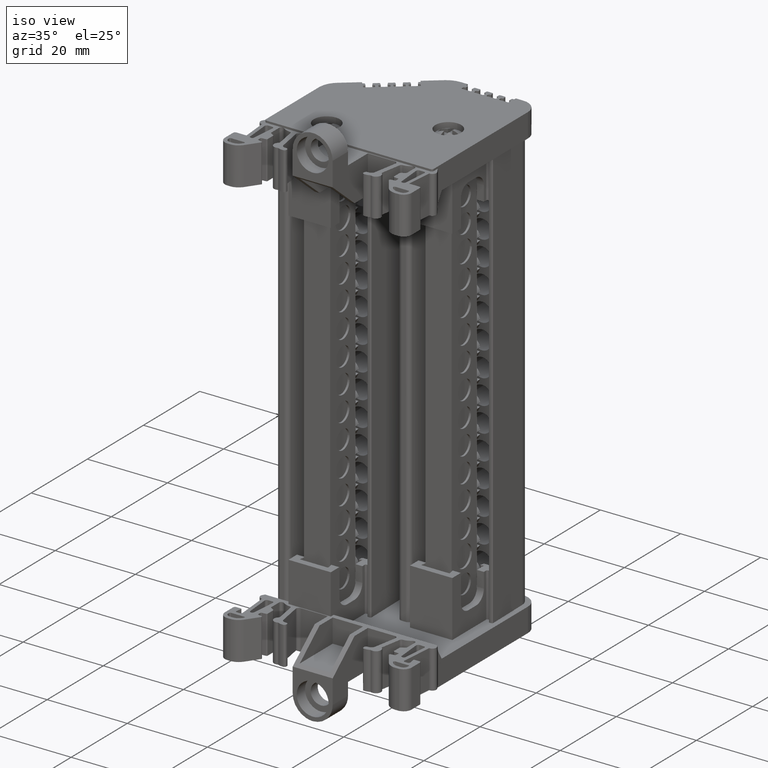
[diagram: clean part render]
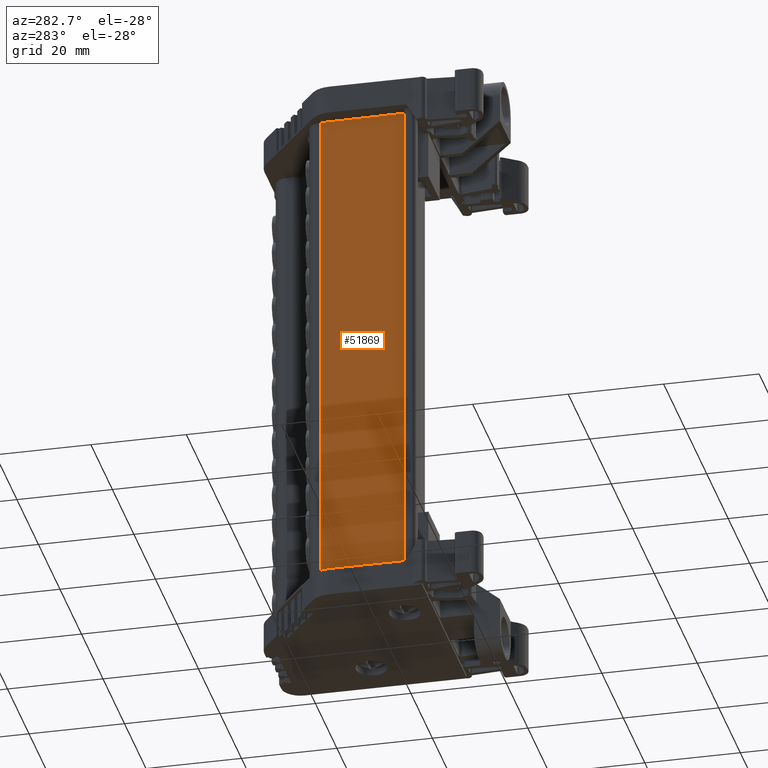
[diagram: tour spotlight — one face highlighted and labeled with its STEP entity id]
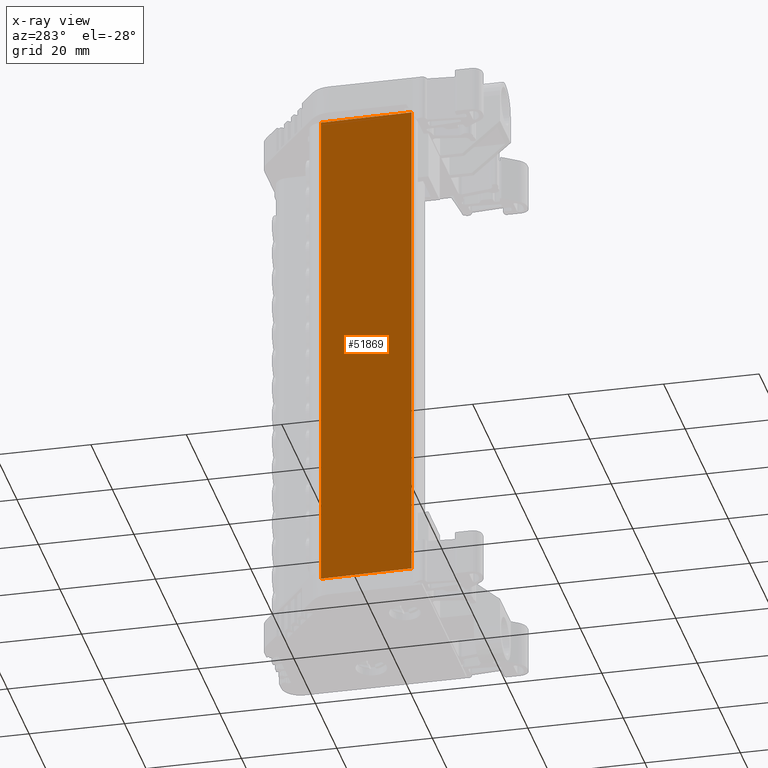
[diagram: x-ray of the same camera — body ghosted, this tour face saturated]
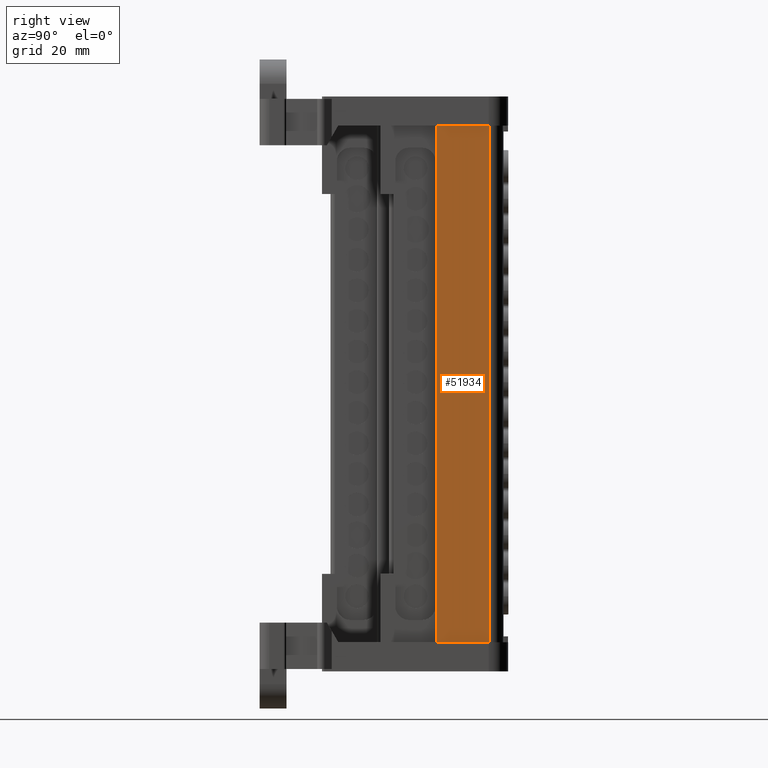
[diagram: tour spotlight — one face highlighted and labeled with its STEP entity id]
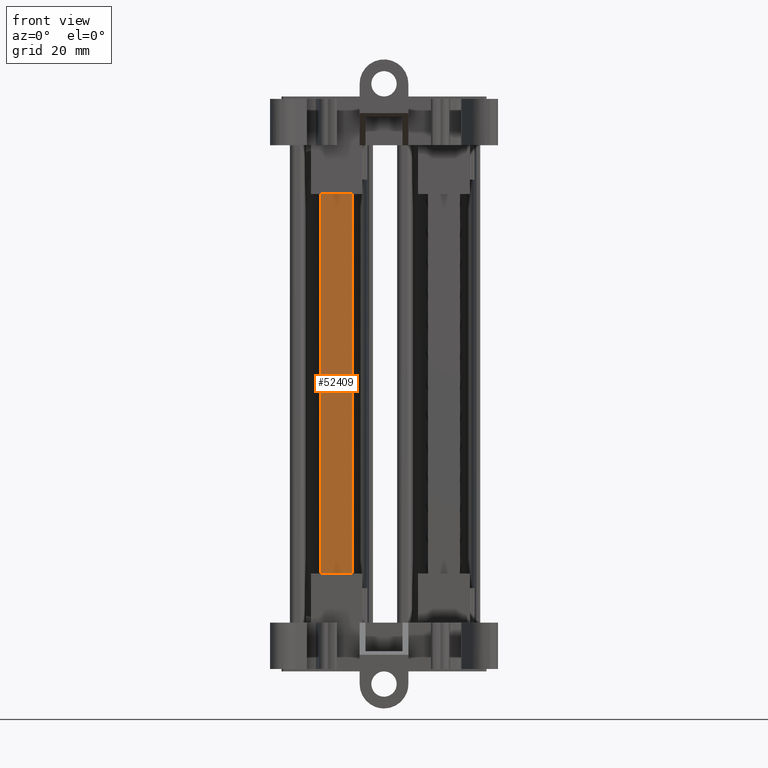
[diagram: tour spotlight — one face highlighted and labeled with its STEP entity id]
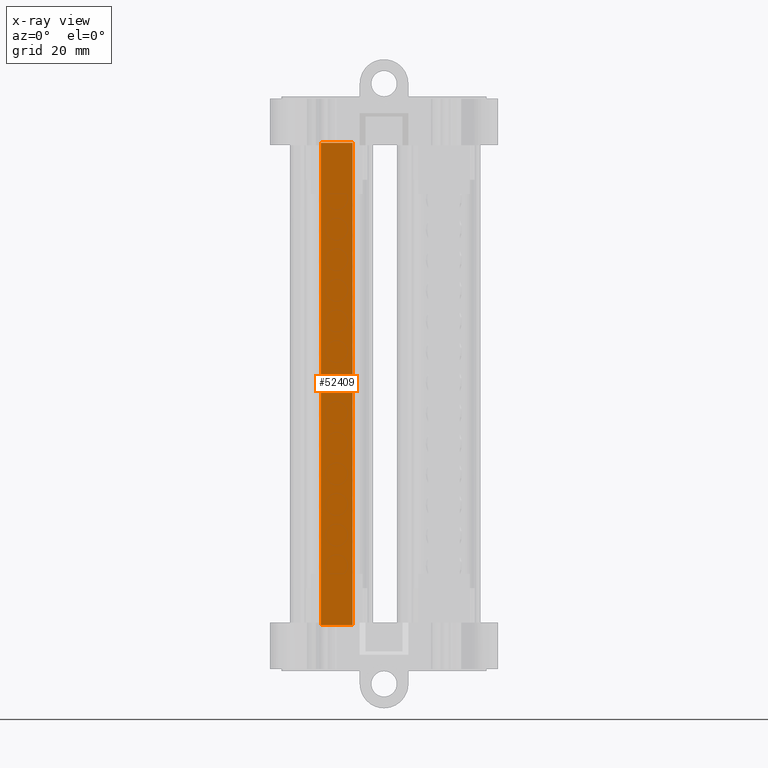
[diagram: x-ray of the same camera — body ghosted, this tour face saturated]
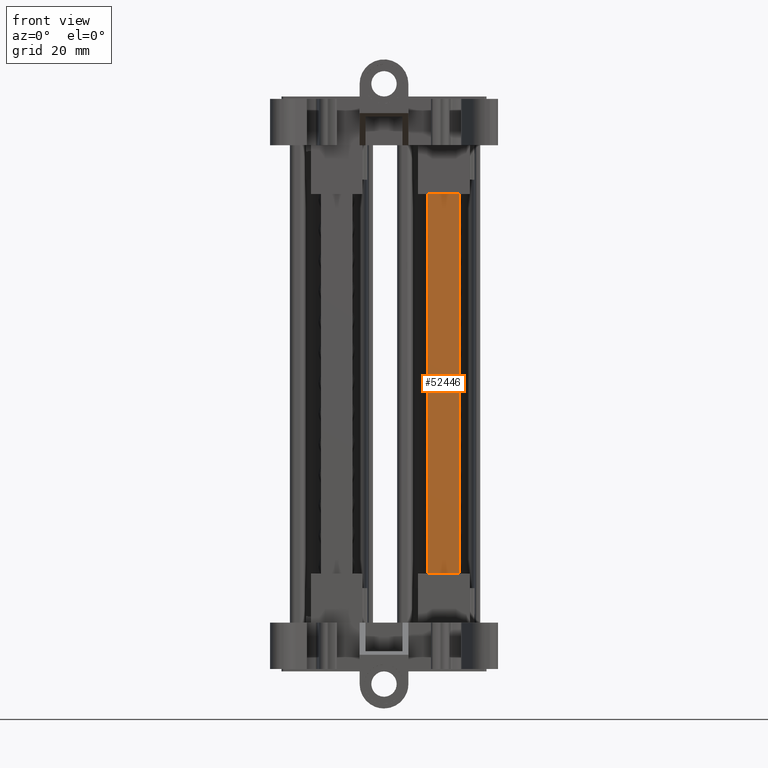
[diagram: tour spotlight — one face highlighted and labeled with its STEP entity id]
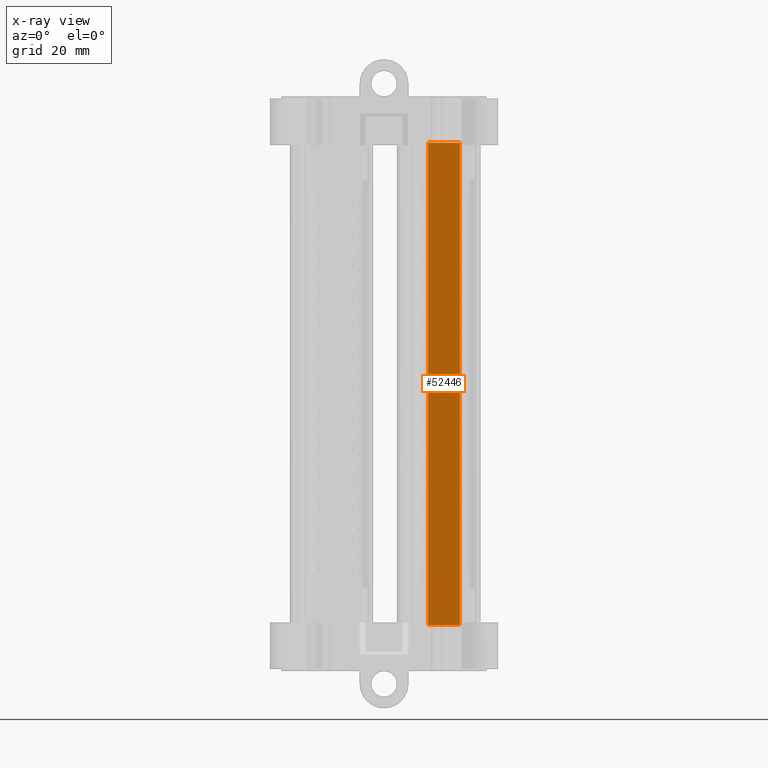
[diagram: x-ray of the same camera — body ghosted, this tour face saturated]
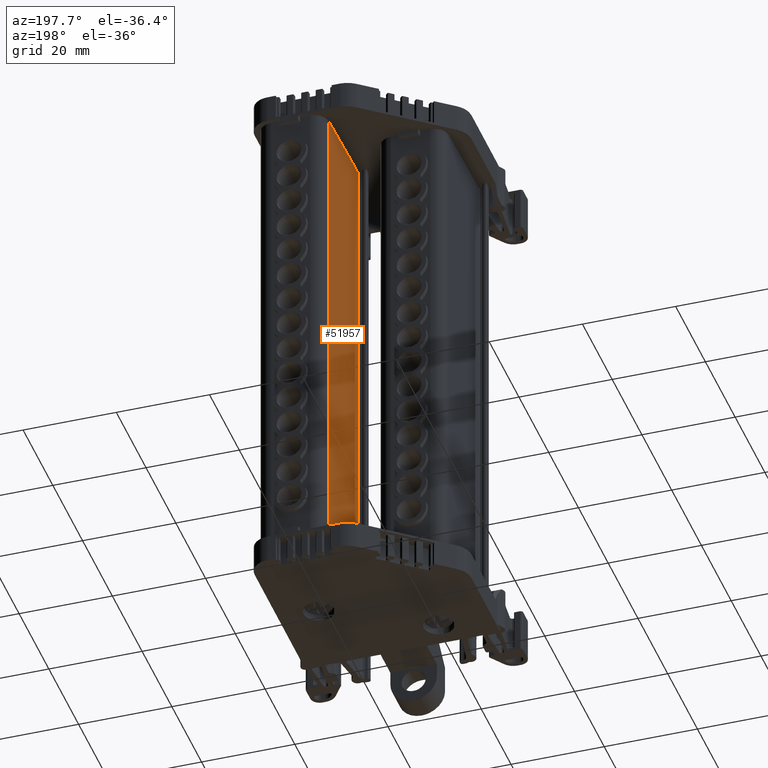
[diagram: tour spotlight — one face highlighted and labeled with its STEP entity id]
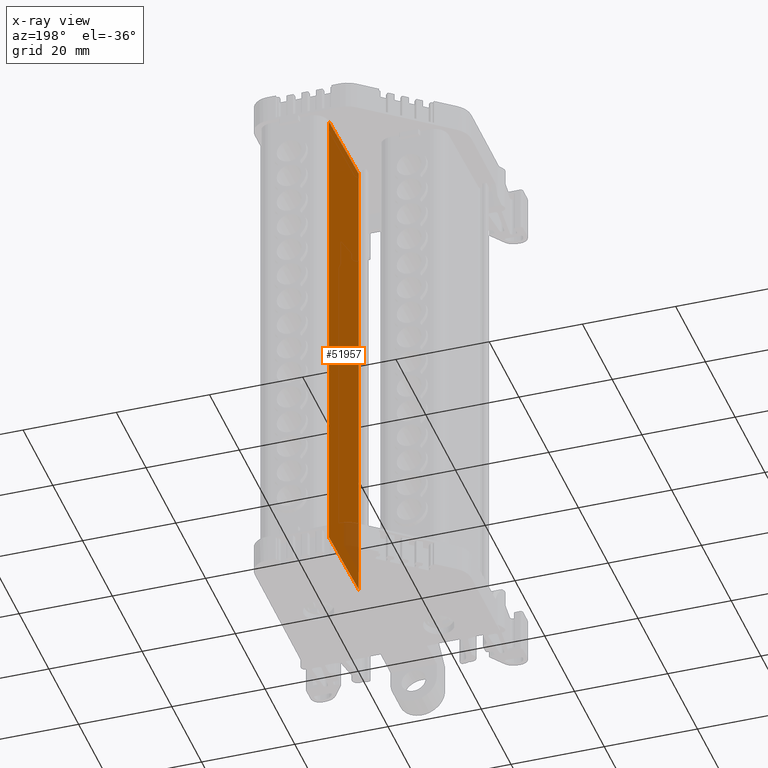
[diagram: x-ray of the same camera — body ghosted, this tour face saturated]
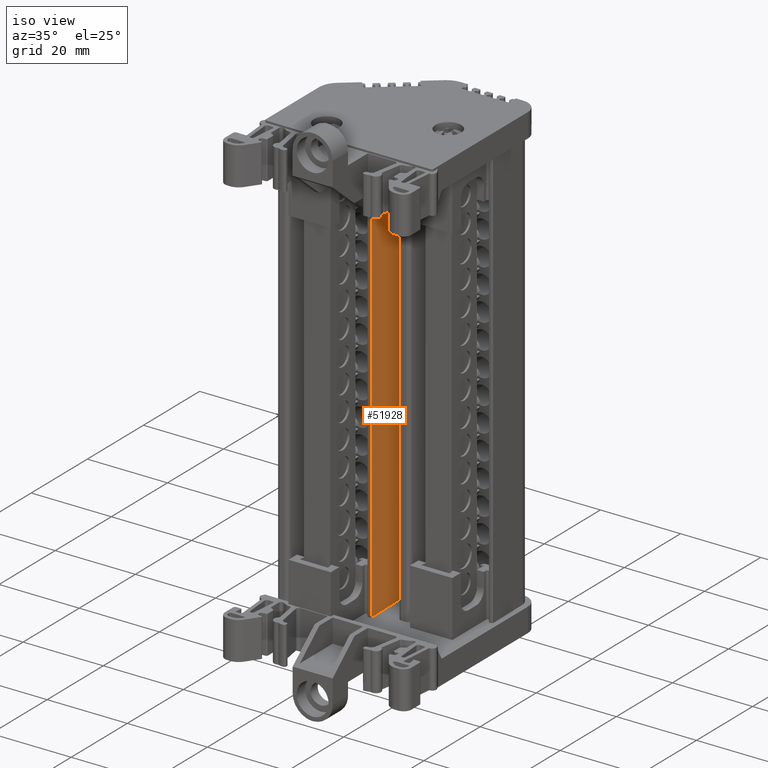
[diagram: tour spotlight — one face highlighted and labeled with its STEP entity id]
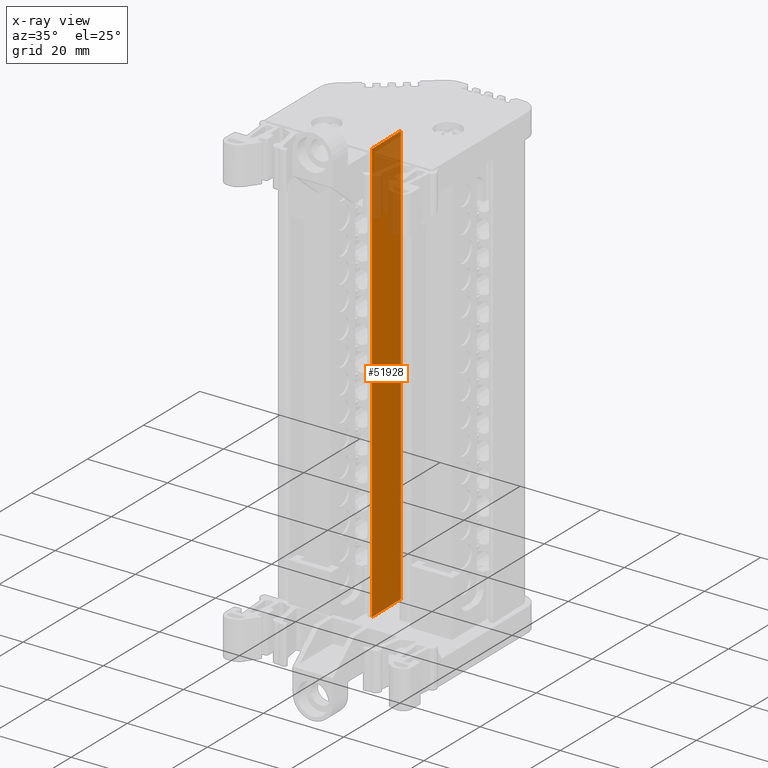
[diagram: x-ray of the same camera — body ghosted, this tour face saturated]
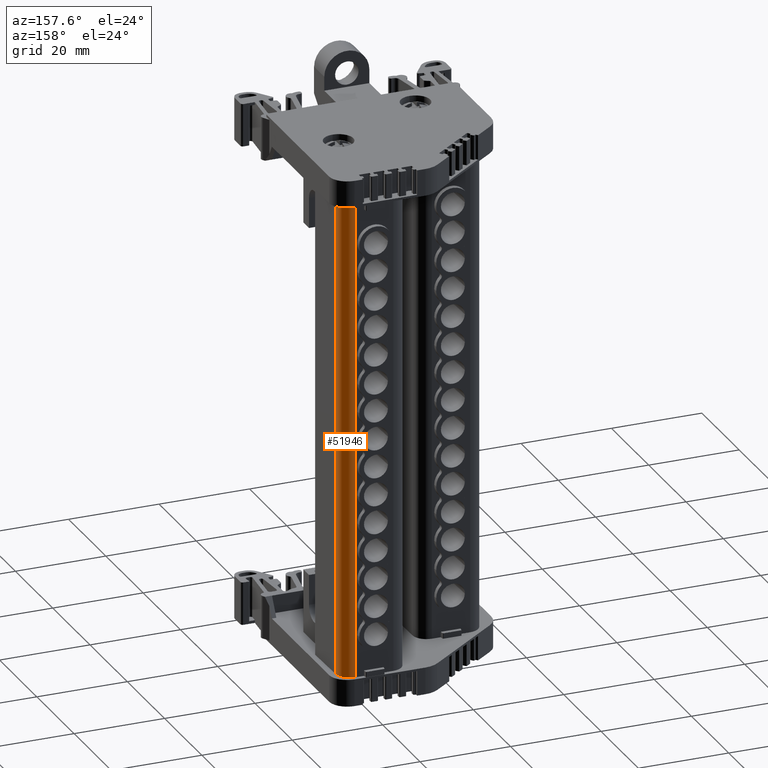
[diagram: tour spotlight — one face highlighted and labeled with its STEP entity id]
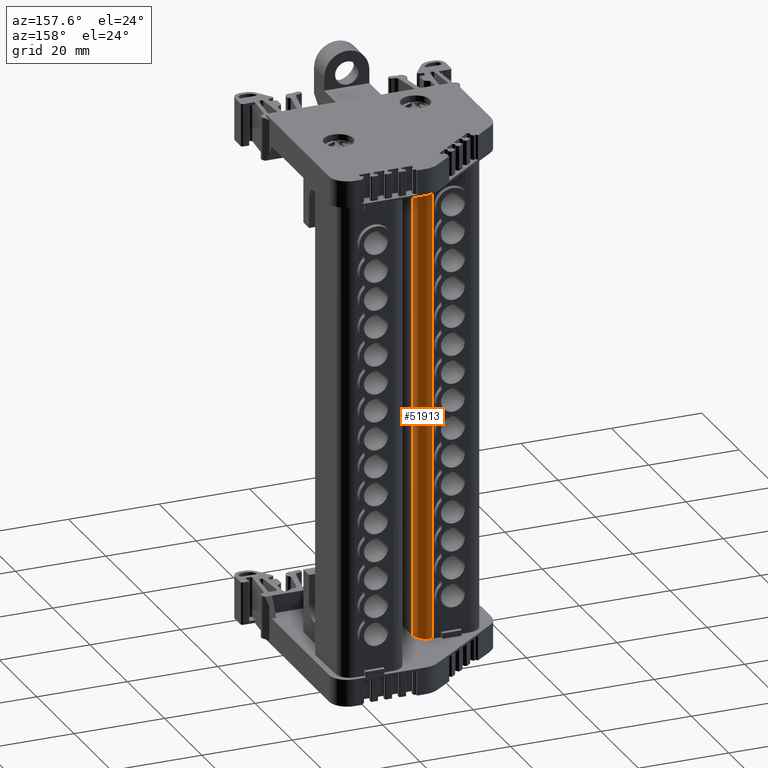
[diagram: tour spotlight — one face highlighted and labeled with its STEP entity id]
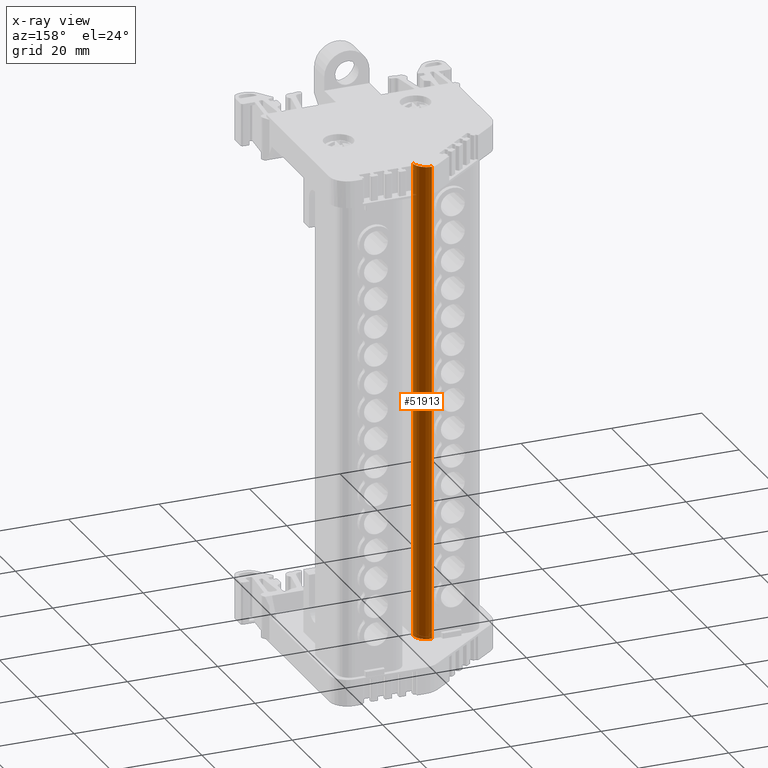
[diagram: x-ray of the same camera — body ghosted, this tour face saturated]
A machine part: a face-by-face anatomy tour. The part has 2331 B-rep faces; the first image is the clean iso view, then the 8 largest visible faces are spotlighted one at a time (largest first), each with its STEP entity span.

Face 1 — auxiliary view, entity #51869. An x-ray twin of the same camera follows (body ghosted, this face saturated) — the face is partly hidden behind the body. In plain terms, the highlighted planar face has unit normal (-0.9998, 0.0175, 0).
Definition (entity closure, byte-faithful):
#10268 = CARTESIAN_POINT ( 'NONE',  ( -63.74084705160222300, 33.48480032527697900, -36.09779384098946100 ) ) ;
#10321 = CARTESIAN_POINT ( 'NONE',  ( -63.74084705160149200, 33.48480032527531600, 69.47218928989242700 ) ) ;
#16164 = VECTOR ( 'NONE', #95538, 1000.000000000000000 ) ;
#16295 = VECTOR ( 'NONE', #95730, 1000.000000000000000 ) ;
#16351 = VECTOR ( 'NONE', #95810, 1000.000000000000000 ) ;
#17609 = ORIENTED_EDGE ( 'NONE', *, *, #67251, .F. ) ;
#17664 = ORIENTED_EDGE ( 'NONE', *, *, #67189, .T. ) ;
#17672 = ORIENTED_EDGE ( 'NONE', *, *, #59639, .T. ) ;
#17703 = ORIENTED_EDGE ( 'NONE', *, *, #67238, .T. ) ;
#19385 = CARTESIAN_POINT ( 'NONE',  ( -64.07299991025533400, 14.45577580135919100, -36.09779384098943200 ) ) ;
#22165 = CARTESIAN_POINT ( 'NONE',  ( -64.07299991025456600, 14.45577580135870800, 69.47218928989242700 ) ) ;
#23014 = DIRECTION ( 'NONE',  ( -0.01745240644083065700, -0.9998476951563293200, 0.0000000000000000000 ) ) ;
#23026 = CARTESIAN_POINT ( 'NONE',  ( -64.07299991025405500, 14.45577580135711000, 146.1334854718472200 ) ) ;
#23030 = DIRECTION ( 'NONE',  ( -0.9998476951563293200, 0.01745240644083065700, 7.261879728953455700E-015 ) ) ;
#23035 = FACE_OUTER_BOUND ( 'NONE', #56219, .T. ) ;
#23040 = PLANE ( 'NONE',  #66404 ) ;
#27840 = VECTOR ( 'NONE', #69792, 1000.000000000000000 ) ;
#47788 = VERTEX_POINT ( 'NONE', #22165 ) ;
#47833 = VERTEX_POINT ( 'NONE', #19385 ) ;
#51869 = ADVANCED_FACE ( 'NONE', ( #23035 ), #23040, .T. ) ;
#56219 = EDGE_LOOP ( 'NONE', ( #17703, #17672, #17664, #17609 ) ) ;
#59639 = EDGE_CURVE ( 'NONE', #47833, #47788, #69774, .T. ) ;
#66404 = AXIS2_PLACEMENT_3D ( 'NONE', #23026, #23030, #23014 ) ;
#67189 = EDGE_CURVE ( 'NONE', #47788, #73689, #95573, .T. ) ;
#67238 = EDGE_CURVE ( 'NONE', #73580, #47833, #95742, .T. ) ;
#67251 = EDGE_CURVE ( 'NONE', #73580, #73689, #95797, .T. ) ;
#69774 = LINE ( 'NONE', #69775, #27840 ) ;
#69775 = CARTESIAN_POINT ( 'NONE',  ( -64.07299991025401200, 14.45577580135916800, 146.1334854718472200 ) ) ;
#69792 = DIRECTION ( 'NONE',  ( 7.260773709496582100E-015, -1.267372765541248700E-016, 1.000000000000000000 ) ) ;
#73580 = VERTEX_POINT ( 'NONE', #10268 ) ;
#73689 = VERTEX_POINT ( 'NONE', #10321 ) ;
#95538 = DIRECTION ( 'NONE',  ( 0.01745240644083065700, 0.9998476951563293200, -0.0000000000000000000 ) ) ;
#95573 = LINE ( 'NONE', #95582, #16164 ) ;
#95582 = CARTESIAN_POINT ( 'NONE',  ( -64.07299991025460900, 14.45577580135712000, 69.47218928989242700 ) ) ;
#95729 = CARTESIAN_POINT ( 'NONE',  ( -64.07299991025537600, 14.45577580135713300, -36.09779384098943200 ) ) ;
#95730 = DIRECTION ( 'NONE',  ( -0.01745240644083065700, -0.9998476951563293200, 0.0000000000000000000 ) ) ;
#95742 = LINE ( 'NONE', #95729, #16295 ) ;
#95797 = LINE ( 'NONE', #95809, #16351 ) ;
#95809 = CARTESIAN_POINT ( 'NONE',  ( -63.74084705160098000, 33.48480032527523800, 146.1334854718477600 ) ) ;
#95810 = DIRECTION ( 'NONE',  ( 6.982962677686110500E-015, -1.604252062634190000E-014, 1.000000000000000000 ) ) ;

Face 2 — right view, entity #51934. In plain terms, the highlighted planar face has unit normal (0.9998, 0.0175, -0).
Definition (entity closure, byte-faithful):
#8849 = AXIS2_PLACEMENT_3D ( 'NONE', #23318, #23316, #23350 ) ;
#10309 = CARTESIAN_POINT ( 'NONE',  ( -27.33177483581932800, 45.56175669123546600, 69.47218928989241200 ) ) ;
#10336 = CARTESIAN_POINT ( 'NONE',  ( -27.33177483582004900, 45.56175669123630500, -36.09779384098943200 ) ) ;
#15629 = VECTOR ( 'NONE', #88400, 1000.000000000000000 ) ;
#15877 = CARTESIAN_POINT ( 'NONE',  ( -27.14618612242263800, 34.92938642163373700, -36.09779384098943200 ) ) ;
#15920 = CARTESIAN_POINT ( 'NONE',  ( -27.14618612242191600, 34.92938642163327500, 69.47218928989242700 ) ) ;
#16438 = VECTOR ( 'NONE', #94843, 1000.000000000000100 ) ;
#16445 = VECTOR ( 'NONE', #94910, 1000.000000000000000 ) ;
#16590 = VECTOR ( 'NONE', #95032, 1000.000000000000100 ) ;
#23316 = DIRECTION ( 'NONE',  ( 0.9998476951563916000, 0.01745240643726310100, -6.701918548398464200E-015 ) ) ;
#23317 = FACE_OUTER_BOUND ( 'NONE', #56208, .T. ) ;
#23318 = CARTESIAN_POINT ( 'NONE',  ( -27.14618612242229600, 34.92938642163454000, 146.1334854718329600 ) ) ;
#23321 = PLANE ( 'NONE',  #8849 ) ;
#23350 = DIRECTION ( 'NONE',  ( -0.01745240643726309700, 0.9998476951563914900, 0.0000000000000000000 ) ) ;
#51934 = ADVANCED_FACE ( 'NONE', ( #23317 ), #23321, .T. ) ;
#56208 = EDGE_LOOP ( 'NONE', ( #83821, #83890, #83949, #83788 ) ) ;
#66836 = EDGE_CURVE ( 'NONE', #74100, #74108, #88442, .T. ) ;
#67309 = EDGE_CURVE ( 'NONE', #73543, #74100, #94809, .T. ) ;
#67332 = EDGE_CURVE ( 'NONE', #73682, #73543, #94904, .T. ) ;
#67352 = EDGE_CURVE ( 'NONE', #74108, #73682, #94991, .T. ) ;
#73543 = VERTEX_POINT ( 'NONE', #10309 ) ;
#73682 = VERTEX_POINT ( 'NONE', #10336 ) ;
#74100 = VERTEX_POINT ( 'NONE', #15920 ) ;
#74108 = VERTEX_POINT ( 'NONE', #15877 ) ;
#83788 = ORIENTED_EDGE ( 'NONE', *, *, #67309, .T. ) ;
#83821 = ORIENTED_EDGE ( 'NONE', *, *, #66836, .T. ) ;
#83890 = ORIENTED_EDGE ( 'NONE', *, *, #67352, .T. ) ;
#83949 = ORIENTED_EDGE ( 'NONE', *, *, #67332, .T. ) ;
#88400 = DIRECTION ( 'NONE',  ( -6.700897813742073800E-015, -1.169646064160823300E-016, -1.000000000000000000 ) ) ;
#88442 = LINE ( 'NONE', #88448, #15629 ) ;
#88448 = CARTESIAN_POINT ( 'NONE',  ( -27.14618612242227900, 34.92938642163353800, 146.1334854718329600 ) ) ;
#94809 = LINE ( 'NONE', #94827, #16438 ) ;
#94827 = CARTESIAN_POINT ( 'NONE',  ( -27.14618612242281200, 34.92938642163453300, 69.47218928989242700 ) ) ;
#94843 = DIRECTION ( 'NONE',  ( 0.01745240643726309700, -0.9998476951563914900, -0.0000000000000000000 ) ) ;
#94904 = LINE ( 'NONE', #94907, #16445 ) ;
#94907 = CARTESIAN_POINT ( 'NONE',  ( -27.33177483581883000, 45.56175669123644000, 146.1334854718329600 ) ) ;
#94910 = DIRECTION ( 'NONE',  ( 6.700897813742073800E-015, 1.169646064160823300E-016, 1.000000000000000000 ) ) ;
#94991 = LINE ( 'NONE', #95009, #16590 ) ;
#95009 = CARTESIAN_POINT ( 'NONE',  ( -27.14618612242351900, 34.92938642163451800, -36.09779384098943200 ) ) ;
#95032 = DIRECTION ( 'NONE',  ( -0.01745240643726309700, 0.9998476951563914900, 0.0000000000000000000 ) ) ;

Face 3 — front view, entity #52409. An x-ray twin of the same camera follows (body ghosted, this face saturated) — the face is partly hidden behind the body. In plain terms, the highlighted planar face has unit normal (0, 1, -0).
Definition (entity closure, byte-faithful):
#9419 = AXIS2_PLACEMENT_3D ( 'NONE', #26261, #26266, #26307 ) ;
#19894 = CARTESIAN_POINT ( 'NONE',  ( -53.25163004031066500, 14.08386505223028400, 65.95457594348542300 ) ) ;
#20111 = CARTESIAN_POINT ( 'NONE',  ( -53.25163004031010400, 14.08386505222988900, -32.58018049458241400 ) ) ;
#20208 = CARTESIAN_POINT ( 'NONE',  ( -59.75163004031059400, 14.08386505223133900, 65.95457594348542300 ) ) ;
#25662 = CARTESIAN_POINT ( 'NONE',  ( -59.75163004031072900, 14.08386505223055200, -32.58018049458240700 ) ) ;
#26205 = PLANE ( 'NONE',  #9419 ) ;
#26261 = CARTESIAN_POINT ( 'NONE',  ( -59.75163004031070100, 14.08386505223055400, -32.58018049458237900 ) ) ;
#26266 = DIRECTION ( 'NONE',  ( 1.648274865130208900E-013, 1.000000000000000000, -7.965850201685521800E-015 ) ) ;
#26295 = FACE_OUTER_BOUND ( 'NONE', #57275, .T. ) ;
#26307 = DIRECTION ( 'NONE',  ( -1.000000000000000000, 1.648274865130208900E-013, 0.0000000000000000000 ) ) ;
#27516 = VECTOR ( 'NONE', #51753, 1000.000000000000000 ) ;
#28385 = VECTOR ( 'NONE', #51629, 1000.000000000000000 ) ;
#28432 = VECTOR ( 'NONE', #51642, 1000.000000000000000 ) ;
#28435 = VECTOR ( 'NONE', #51779, 1000.000000000000000 ) ;
#51593 = LINE ( 'NONE', #51595, #28385 ) ;
#51595 = CARTESIAN_POINT ( 'NONE',  ( -59.56697881360274500, 14.08386505222976300, -32.58018049458241400 ) ) ;
#51629 = DIRECTION ( 'NONE',  ( -1.000000000000000000, -2.763709470186515900E-032, -3.469446951942104400E-018 ) ) ;
#51634 = CARTESIAN_POINT ( 'NONE',  ( -59.56697881360274500, 14.08386505223133900, 65.95457594348540900 ) ) ;
#51642 = DIRECTION ( 'NONE',  ( 1.000000000000000000, 2.763709470183716600E-032, -3.469446951938590400E-018 ) ) ;
#51676 = LINE ( 'NONE', #51634, #28432 ) ;
#51753 = DIRECTION ( 'NONE',  ( -1.189952329614814900E-016, 1.961368515607237000E-029, -1.000000000000000000 ) ) ;
#51776 = CARTESIAN_POINT ( 'NONE',  ( -59.75163004031075800, 14.08386505223133900, -32.58018049458243600 ) ) ;
#51779 = DIRECTION ( 'NONE',  ( -1.189952329614814900E-016, 1.961368515607237000E-029, -1.000000000000000000 ) ) ;
#51780 = LINE ( 'NONE', #51776, #28435 ) ;
#51785 = LINE ( 'NONE', #51786, #27516 ) ;
#51786 = CARTESIAN_POINT ( 'NONE',  ( -53.25163004031068000, 14.08386505223028400, -32.58018049458243600 ) ) ;
#52409 = ADVANCED_FACE ( 'NONE', ( #26295 ), #26205, .F. ) ;
#57275 = EDGE_LOOP ( 'NONE', ( #79801, #79809, #79765, #79746 ) ) ;
#58754 = EDGE_CURVE ( 'NONE', #84450, #84579, #51593, .T. ) ;
#58769 = EDGE_CURVE ( 'NONE', #84455, #84437, #51676, .T. ) ;
#58779 = EDGE_CURVE ( 'NONE', #84455, #84579, #51780, .T. ) ;
#58784 = EDGE_CURVE ( 'NONE', #84437, #84450, #51785, .T. ) ;
#79746 = ORIENTED_EDGE ( 'NONE', *, *, #58779, .T. ) ;
#79765 = ORIENTED_EDGE ( 'NONE', *, *, #58769, .F. ) ;
#79801 = ORIENTED_EDGE ( 'NONE', *, *, #58754, .F. ) ;
#79809 = ORIENTED_EDGE ( 'NONE', *, *, #58784, .F. ) ;
#84437 = VERTEX_POINT ( 'NONE', #19894 ) ;
#84450 = VERTEX_POINT ( 'NONE', #20111 ) ;
#84455 = VERTEX_POINT ( 'NONE', #20208 ) ;
#84579 = VERTEX_POINT ( 'NONE', #25662 ) ;

Face 4 — front view, entity #52446. An x-ray twin of the same camera follows (body ghosted, this face saturated) — the face is partly hidden behind the body. In plain terms, the highlighted planar face has unit normal (0, 1, -0).
Definition (entity closure, byte-faithful):
#9452 = AXIS2_PLACEMENT_3D ( 'NONE', #24673, #24690, #24678 ) ;
#21474 = CARTESIAN_POINT ( 'NONE',  ( -37.81639942213257700, 26.04872864396691800, 65.95457594348549400 ) ) ;
#21496 = CARTESIAN_POINT ( 'NONE',  ( -31.31639942213266500, 26.04872864396586300, 65.95457594348549400 ) ) ;
#21525 = CARTESIAN_POINT ( 'NONE',  ( -37.81639942213271200, 26.04872864396612900, -32.58018049458251400 ) ) ;
#21588 = CARTESIAN_POINT ( 'NONE',  ( -31.31639942213209300, 26.04872864396546800, -32.58018049458251400 ) ) ;
#24627 = PLANE ( 'NONE',  #9452 ) ;
#24651 = FACE_OUTER_BOUND ( 'NONE', #60923, .T. ) ;
#24673 = CARTESIAN_POINT ( 'NONE',  ( -37.81639942213269700, 26.04872864396613300, -32.58018049458251400 ) ) ;
#24678 = DIRECTION ( 'NONE',  ( -1.000000000000000000, 1.648274865130208900E-013, 0.0000000000000000000 ) ) ;
#24690 = DIRECTION ( 'NONE',  ( 1.648274865130208900E-013, 1.000000000000000000, -7.965850201685521800E-015 ) ) ;
#27555 = VECTOR ( 'NONE', #56002, 1000.000000000000000 ) ;
#27561 = VECTOR ( 'NONE', #61389, 1000.000000000000000 ) ;
#27577 = VECTOR ( 'NONE', #55968, 1000.000000000000000 ) ;
#27597 = VECTOR ( 'NONE', #56222, 1000.000000000000000 ) ;
#47357 = VERTEX_POINT ( 'NONE', #21474 ) ;
#47389 = VERTEX_POINT ( 'NONE', #21525 ) ;
#47394 = VERTEX_POINT ( 'NONE', #21588 ) ;
#47400 = VERTEX_POINT ( 'NONE', #21496 ) ;
#52446 = ADVANCED_FACE ( 'NONE', ( #24651 ), #24627, .F. ) ;
#55912 = LINE ( 'NONE', #55929, #27577 ) ;
#55929 = CARTESIAN_POINT ( 'NONE',  ( -31.31639942213267600, 26.04872864396586300, -32.58018049458257100 ) ) ;
#55968 = DIRECTION ( 'NONE',  ( -1.189952329614814900E-016, 1.961368515607237000E-029, -1.000000000000000000 ) ) ;
#56002 = DIRECTION ( 'NONE',  ( -1.000000000000000000, -2.763709470186515900E-032, -3.469446951942104400E-018 ) ) ;
#56064 = LINE ( 'NONE', #56068, #27555 ) ;
#56068 = CARTESIAN_POINT ( 'NONE',  ( -37.63174819542446400, 26.04872864396534400, -32.58018049458251400 ) ) ;
#56222 = DIRECTION ( 'NONE',  ( -1.189952329614814900E-016, 1.961368515607237000E-029, -1.000000000000000000 ) ) ;
#56259 = LINE ( 'NONE', #56296, #27597 ) ;
#56296 = CARTESIAN_POINT ( 'NONE',  ( -37.81639942213274000, 26.04872864396691800, -32.58018049458257100 ) ) ;
#59008 = EDGE_CURVE ( 'NONE', #47400, #47394, #55912, .T. ) ;
#59014 = EDGE_CURVE ( 'NONE', #47394, #47389, #56064, .T. ) ;
#59044 = EDGE_CURVE ( 'NONE', #47357, #47389, #56259, .T. ) ;
#59071 = EDGE_CURVE ( 'NONE', #47357, #47400, #61272, .T. ) ;
#60923 = EDGE_LOOP ( 'NONE', ( #79620, #79574, #79557, #79604 ) ) ;
#61272 = LINE ( 'NONE', #61274, #27561 ) ;
#61274 = CARTESIAN_POINT ( 'NONE',  ( -37.63174819542446400, 26.04872864396691800, 65.95457594348549400 ) ) ;
#61389 = DIRECTION ( 'NONE',  ( 1.000000000000000000, 2.763709470183716600E-032, -3.469446951938590400E-018 ) ) ;
#79557 = ORIENTED_EDGE ( 'NONE', *, *, #59071, .F. ) ;
#79574 = ORIENTED_EDGE ( 'NONE', *, *, #59008, .F. ) ;
#79604 = ORIENTED_EDGE ( 'NONE', *, *, #59044, .T. ) ;
#79620 = ORIENTED_EDGE ( 'NONE', *, *, #59014, .F. ) ;

Face 5 — auxiliary view, entity #51957. An x-ray twin of the same camera follows (body ghosted, this face saturated) — the face is partly hidden behind the body. In plain terms, the highlighted planar face has unit normal (-0.9998, 0.0175, 0).
Definition (entity closure, byte-faithful):
#8865 = AXIS2_PLACEMENT_3D ( 'NONE', #22250, #22254, #22255 ) ;
#10340 = CARTESIAN_POINT ( 'NONE',  ( -41.80561643342256400, 45.44947157172145300, -36.09779384098946100 ) ) ;
#10341 = CARTESIAN_POINT ( 'NONE',  ( -41.80561643342183200, 45.44947157171969100, 69.47218928989242700 ) ) ;
#15675 = VECTOR ( 'NONE', #91074, 1000.000000000000000 ) ;
#15962 = CARTESIAN_POINT ( 'NONE',  ( -42.13776929207567400, 26.42044704780356300, -36.09779384098944600 ) ) ;
#15987 = CARTESIAN_POINT ( 'NONE',  ( -42.13776929207492100, 26.42044704780308000, 69.47218928989242700 ) ) ;
#16306 = VECTOR ( 'NONE', #94719, 1000.000000000000000 ) ;
#16420 = VECTOR ( 'NONE', #94858, 1000.000000000000000 ) ;
#16461 = VECTOR ( 'NONE', #94971, 1000.000000000000000 ) ;
#21154 = ORIENTED_EDGE ( 'NONE', *, *, #67265, .T. ) ;
#21187 = ORIENTED_EDGE ( 'NONE', *, *, #66954, .T. ) ;
#21199 = ORIENTED_EDGE ( 'NONE', *, *, #67347, .F. ) ;
#21250 = ORIENTED_EDGE ( 'NONE', *, *, #67317, .T. ) ;
#22247 = PLANE ( 'NONE',  #8865 ) ;
#22250 = CARTESIAN_POINT ( 'NONE',  ( -42.13776929207439500, 26.42044704780148100, 146.1334854718329600 ) ) ;
#22252 = FACE_OUTER_BOUND ( 'NONE', #56295, .T. ) ;
#22254 = DIRECTION ( 'NONE',  ( -0.9998476951563293200, 0.01745240644083065700, 7.261879728953455700E-015 ) ) ;
#22255 = DIRECTION ( 'NONE',  ( -0.01745240644083065700, -0.9998476951563293200, 0.0000000000000000000 ) ) ;
#51957 = ADVANCED_FACE ( 'NONE', ( #22252 ), #22247, .T. ) ;
#56295 = EDGE_LOOP ( 'NONE', ( #21199, #21250, #21187, #21154 ) ) ;
#66954 = EDGE_CURVE ( 'NONE', #74221, #74254, #91034, .T. ) ;
#67265 = EDGE_CURVE ( 'NONE', #74254, #73751, #95806, .T. ) ;
#67317 = EDGE_CURVE ( 'NONE', #73747, #74221, #94840, .T. ) ;
#67347 = EDGE_CURVE ( 'NONE', #73747, #73751, #94961, .T. ) ;
#73747 = VERTEX_POINT ( 'NONE', #10340 ) ;
#73751 = VERTEX_POINT ( 'NONE', #10341 ) ;
#74221 = VERTEX_POINT ( 'NONE', #15962 ) ;
#74254 = VERTEX_POINT ( 'NONE', #15987 ) ;
#91034 = LINE ( 'NONE', #91086, #15675 ) ;
#91074 = DIRECTION ( 'NONE',  ( 7.260773709496582100E-015, -1.267372765541248700E-016, 1.000000000000000000 ) ) ;
#91086 = CARTESIAN_POINT ( 'NONE',  ( -42.13776929207436000, 26.42044704780353800, 146.1334854718329600 ) ) ;
#94717 = CARTESIAN_POINT ( 'NONE',  ( -42.13776929207495000, 26.42044704780149200, 69.47218928989242700 ) ) ;
#94719 = DIRECTION ( 'NONE',  ( 0.01745240644083065700, 0.9998476951563293200, -0.0000000000000000000 ) ) ;
#94840 = LINE ( 'NONE', #94873, #16420 ) ;
#94858 = DIRECTION ( 'NONE',  ( -0.01745240644083065700, -0.9998476951563293200, 0.0000000000000000000 ) ) ;
#94873 = CARTESIAN_POINT ( 'NONE',  ( -42.13776929207572400, 26.42044704780150600, -36.09779384098946100 ) ) ;
#94961 = LINE ( 'NONE', #94970, #16461 ) ;
#94970 = CARTESIAN_POINT ( 'NONE',  ( -41.80561643342131400, 45.44947157171961300, 146.1334854718334100 ) ) ;
#94971 = DIRECTION ( 'NONE',  ( 6.982962677686110500E-015, -1.604252062634190000E-014, 1.000000000000000000 ) ) ;
#95806 = LINE ( 'NONE', #94717, #16306 ) ;

Face 6 — iso view, entity #51928. An x-ray twin of the same camera follows (body ghosted, this face saturated) — the face is partly hidden behind the body. In plain terms, the highlighted planar face has unit normal (0.9998, 0.0175, -0).
Definition (entity closure, byte-faithful):
#8848 = AXIS2_PLACEMENT_3D ( 'NONE', #23264, #23307, #23301 ) ;
#10299 = CARTESIAN_POINT ( 'NONE',  ( -49.26700545399899100, 33.59708544479109100, 69.47218928989241200 ) ) ;
#10300 = CARTESIAN_POINT ( 'NONE',  ( -49.26700545399971500, 33.59708544479192200, -36.09779384098943200 ) ) ;
#16019 = VECTOR ( 'NONE', #92196, 1000.000000000000100 ) ;
#16047 = VECTOR ( 'NONE', #90975, 1000.000000000000000 ) ;
#16533 = VECTOR ( 'NONE', #94784, 1000.000000000000100 ) ;
#17528 = ORIENTED_EDGE ( 'NONE', *, *, #67112, .T. ) ;
#17555 = ORIENTED_EDGE ( 'NONE', *, *, #67288, .T. ) ;
#18597 = ORIENTED_EDGE ( 'NONE', *, *, #59485, .T. ) ;
#18622 = ORIENTED_EDGE ( 'NONE', *, *, #67163, .T. ) ;
#21978 = CARTESIAN_POINT ( 'NONE',  ( -49.08141674060230000, 22.96471517518936500, -36.09779384098943200 ) ) ;
#21979 = CARTESIAN_POINT ( 'NONE',  ( -49.08141674060158300, 22.96471517518890000, 69.47218928989242700 ) ) ;
#23264 = CARTESIAN_POINT ( 'NONE',  ( -49.08141674060195900, 22.96471517519016500, 146.1334854718472200 ) ) ;
#23285 = PLANE ( 'NONE',  #8848 ) ;
#23292 = FACE_OUTER_BOUND ( 'NONE', #56265, .T. ) ;
#23301 = DIRECTION ( 'NONE',  ( -0.01745240643726309700, 0.9998476951563914900, 0.0000000000000000000 ) ) ;
#23307 = DIRECTION ( 'NONE',  ( 0.9998476951563916000, 0.01745240643726310100, -6.701918548398464200E-015 ) ) ;
#27740 = VECTOR ( 'NONE', #69453, 1000.000000000000000 ) ;
#47674 = VERTEX_POINT ( 'NONE', #21978 ) ;
#47684 = VERTEX_POINT ( 'NONE', #21979 ) ;
#51928 = ADVANCED_FACE ( 'NONE', ( #23292 ), #23285, .T. ) ;
#56265 = EDGE_LOOP ( 'NONE', ( #17528, #18622, #17555, #18597 ) ) ;
#59485 = EDGE_CURVE ( 'NONE', #47684, #47674, #69439, .T. ) ;
#67112 = EDGE_CURVE ( 'NONE', #47674, #73556, #92239, .T. ) ;
#67163 = EDGE_CURVE ( 'NONE', #73556, #73553, #90974, .T. ) ;
#67288 = EDGE_CURVE ( 'NONE', #73553, #47684, #94780, .T. ) ;
#69439 = LINE ( 'NONE', #69445, #27740 ) ;
#69445 = CARTESIAN_POINT ( 'NONE',  ( -49.08141674060193800, 22.96471517518916600, 146.1334854718472200 ) ) ;
#69453 = DIRECTION ( 'NONE',  ( -6.700897813742073800E-015, -1.169646064160823300E-016, -1.000000000000000000 ) ) ;
#73553 = VERTEX_POINT ( 'NONE', #10299 ) ;
#73556 = VERTEX_POINT ( 'NONE', #10300 ) ;
#90974 = LINE ( 'NONE', #91003, #16047 ) ;
#90975 = DIRECTION ( 'NONE',  ( 6.700897813742073800E-015, 1.169646064160823300E-016, 1.000000000000000000 ) ) ;
#91003 = CARTESIAN_POINT ( 'NONE',  ( -49.26700545399849300, 33.59708544479205700, 146.1334854718472200 ) ) ;
#92153 = CARTESIAN_POINT ( 'NONE',  ( -49.08141674060318100, 22.96471517519014300, -36.09779384098943200 ) ) ;
#92196 = DIRECTION ( 'NONE',  ( -0.01745240643726309700, 0.9998476951563914900, 0.0000000000000000000 ) ) ;
#92239 = LINE ( 'NONE', #92153, #16019 ) ;
#94780 = LINE ( 'NONE', #94782, #16533 ) ;
#94782 = CARTESIAN_POINT ( 'NONE',  ( -49.08141674060247100, 22.96471517519015400, 69.47218928989242700 ) ) ;
#94784 = DIRECTION ( 'NONE',  ( 0.01745240643726309700, -0.9998476951563914900, -0.0000000000000000000 ) ) ;

Face 7 — auxiliary view, entity #51946. In plain terms, the highlighted cylindrical surface (edge-blend (fillet) strip) has radius 3.0101 mm, axis along (-0, 0, -1).
Definition (entity closure, byte-faithful):
#8851 = AXIS2_PLACEMENT_3D ( 'NONE', #23378, #23408, #23380 ) ;
#10281 = CARTESIAN_POINT ( 'NONE',  ( -30.34139942213531800, 48.51930653521286300, -36.09779384098939700 ) ) ;
#10309 = CARTESIAN_POINT ( 'NONE',  ( -27.33177483581932800, 45.56175669123546600, 69.47218928989241200 ) ) ;
#10313 = CARTESIAN_POINT ( 'NONE',  ( -30.34139942213497300, 48.51930653521117200, 69.47218928989241200 ) ) ;
#10336 = CARTESIAN_POINT ( 'NONE',  ( -27.33177483582004900, 45.56175669123630500, -36.09779384098943200 ) ) ;
#16445 = VECTOR ( 'NONE', #94910, 1000.000000000000000 ) ;
#16457 = AXIS2_PLACEMENT_3D ( 'NONE', #94854, #94870, #94838 ) ;
#16535 = CIRCLE ( 'NONE', #16457, 3.010083036540315900 ) ;
#16638 = CIRCLE ( 'NONE', #16657, 3.010083036540315900 ) ;
#16657 = AXIS2_PLACEMENT_3D ( 'NONE', #95000, #95023, #94994 ) ;
#23378 = CARTESIAN_POINT ( 'NONE',  ( -30.34139942213424800, 45.50922349866964100, 146.1334854718333800 ) ) ;
#23380 = DIRECTION ( 'NONE',  ( 0.0000000000000000000, 1.000000000000000000, 1.844173418387168400E-014 ) ) ;
#23391 = FACE_OUTER_BOUND ( 'NONE', #56263, .T. ) ;
#23408 = DIRECTION ( 'NONE',  ( -6.982962677686110500E-015, 1.604252062634190000E-014, -1.000000000000000000 ) ) ;
#23412 = CYLINDRICAL_SURFACE ( 'NONE', #8851, 3.010083036540315900 ) ;
#51946 = ADVANCED_FACE ( 'NONE', ( #23391 ), #23412, .T. ) ;
#56263 = EDGE_LOOP ( 'NONE', ( #83950, #83910, #83915, #83795 ) ) ;
#67313 = EDGE_CURVE ( 'NONE', #73529, #73543, #16535, .T. ) ;
#67332 = EDGE_CURVE ( 'NONE', #73682, #73543, #94904, .T. ) ;
#67339 = EDGE_CURVE ( 'NONE', #73529, #73629, #83704, .T. ) ;
#67353 = EDGE_CURVE ( 'NONE', #73682, #73629, #16638, .T. ) ;
#73529 = VERTEX_POINT ( 'NONE', #10313 ) ;
#73543 = VERTEX_POINT ( 'NONE', #10309 ) ;
#73629 = VERTEX_POINT ( 'NONE', #10281 ) ;
#73682 = VERTEX_POINT ( 'NONE', #10336 ) ;
#83704 = B_SPLINE_CURVE_WITH_KNOTS ( 'NONE', 3,
 ( #94973, #94981, #94975, #94982 ),
 .UNSPECIFIED., .F., .F.,
 ( 4, 4 ),
 ( 0.0000000000000000000, 1.000000000000000000 ),
 .UNSPECIFIED. ) ;
#83795 = ORIENTED_EDGE ( 'NONE', *, *, #67313, .T. ) ;
#83910 = ORIENTED_EDGE ( 'NONE', *, *, #67353, .T. ) ;
#83915 = ORIENTED_EDGE ( 'NONE', *, *, #67339, .F. ) ;
#83950 = ORIENTED_EDGE ( 'NONE', *, *, #67332, .F. ) ;
#94838 = DIRECTION ( 'NONE',  ( 0.0000000000000000000, 1.000000000000000000, 1.383130063790376300E-014 ) ) ;
#94854 = CARTESIAN_POINT ( 'NONE',  ( -30.34139942213478500, 45.50922349867087000, 69.47218928989239800 ) ) ;
#94870 = DIRECTION ( 'NONE',  ( -6.982962677686110500E-015, 1.604252062634190000E-014, -1.000000000000000000 ) ) ;
#94904 = LINE ( 'NONE', #94907, #16445 ) ;
#94907 = CARTESIAN_POINT ( 'NONE',  ( -27.33177483581883000, 45.56175669123644000, 146.1334854718329600 ) ) ;
#94910 = DIRECTION ( 'NONE',  ( 6.700897813742073800E-015, 1.169646064160823300E-016, 1.000000000000000000 ) ) ;
#94973 = CARTESIAN_POINT ( 'NONE',  ( -30.34139942213497300, 48.51930653521117200, 69.47218928989241200 ) ) ;
#94975 = CARTESIAN_POINT ( 'NONE',  ( -30.34139942213517200, 48.51930653521228700, -0.9077994640287954100 ) ) ;
#94981 = CARTESIAN_POINT ( 'NONE',  ( -30.34139942213511900, 48.51930653521171900, 34.28219491293182100 ) ) ;
#94982 = CARTESIAN_POINT ( 'NONE',  ( -30.34139942213531800, 48.51930653521286300, -36.09779384098939700 ) ) ;
#94994 = DIRECTION ( 'NONE',  ( 2.305216772983960500E-015, 1.000000000000000000, 1.613651741088772600E-014 ) ) ;
#95000 = CARTESIAN_POINT ( 'NONE',  ( -30.34139942213552400, 45.50922349867256100, -36.09779384098940400 ) ) ;
#95023 = DIRECTION ( 'NONE',  ( 6.982962677686110500E-015, -1.604252062634190000E-014, 1.000000000000000000 ) ) ;

Face 8 — auxiliary view, entity #51913. An x-ray twin of the same camera follows (body ghosted, this face saturated) — the face is partly hidden behind the body. In plain terms, the highlighted cylindrical surface (edge-blend (fillet) strip) has radius 3.0101 mm, axis along (-0, 0, -1).
Definition (entity closure, byte-faithful):
#8842 = AXIS2_PLACEMENT_3D ( 'NONE', #23218, #23223, #23246 ) ;
#10256 = CARTESIAN_POINT ( 'NONE',  ( -52.27663004031499100, 36.55463528876848800, -36.09779384098941100 ) ) ;
#10299 = CARTESIAN_POINT ( 'NONE',  ( -49.26700545399899100, 33.59708544479109100, 69.47218928989241200 ) ) ;
#10300 = CARTESIAN_POINT ( 'NONE',  ( -49.26700545399971500, 33.59708544479192200, -36.09779384098943200 ) ) ;
#10367 = CARTESIAN_POINT ( 'NONE',  ( -52.27663004031463600, 36.55463528876681100, 69.47218928989241200 ) ) ;
#16047 = VECTOR ( 'NONE', #90975, 1000.000000000000000 ) ;
#16194 = AXIS2_PLACEMENT_3D ( 'NONE', #95709, #95710, #95688 ) ;
#16237 = CIRCLE ( 'NONE', #16289, 3.010083036540315900 ) ;
#16262 = CIRCLE ( 'NONE', #16194, 3.010083036540315900 ) ;
#16289 = AXIS2_PLACEMENT_3D ( 'NONE', #95635, #95654, #95644 ) ;
#17550 = ORIENTED_EDGE ( 'NONE', *, *, #67215, .T. ) ;
#17562 = ORIENTED_EDGE ( 'NONE', *, *, #67104, .F. ) ;
#17579 = ORIENTED_EDGE ( 'NONE', *, *, #67220, .T. ) ;
#23218 = CARTESIAN_POINT ( 'NONE',  ( -52.27663004031391100, 33.54455225222526600, 146.1334854718477300 ) ) ;
#23219 = FACE_OUTER_BOUND ( 'NONE', #56213, .T. ) ;
#23223 = DIRECTION ( 'NONE',  ( -6.982962677686110500E-015, 1.604252062634190000E-014, -1.000000000000000000 ) ) ;
#23228 = CYLINDRICAL_SURFACE ( 'NONE', #8842, 3.010083036540315900 ) ;
#23246 = DIRECTION ( 'NONE',  ( 0.0000000000000000000, 1.000000000000000000, 1.844173418387168400E-014 ) ) ;
#51913 = ADVANCED_FACE ( 'NONE', ( #23219 ), #23228, .T. ) ;
#56213 = EDGE_LOOP ( 'NONE', ( #17579, #17562, #17550, #89211 ) ) ;
#67104 = EDGE_CURVE ( 'NONE', #73678, #73592, #83696, .T. ) ;
#67163 = EDGE_CURVE ( 'NONE', #73556, #73553, #90974, .T. ) ;
#67215 = EDGE_CURVE ( 'NONE', #73678, #73553, #16237, .T. ) ;
#67220 = EDGE_CURVE ( 'NONE', #73556, #73592, #16262, .T. ) ;
#73553 = VERTEX_POINT ( 'NONE', #10299 ) ;
#73556 = VERTEX_POINT ( 'NONE', #10300 ) ;
#73592 = VERTEX_POINT ( 'NONE', #10256 ) ;
#73678 = VERTEX_POINT ( 'NONE', #10367 ) ;
#83696 = B_SPLINE_CURVE_WITH_KNOTS ( 'NONE', 3,
 ( #92207, #92222, #92224, #92180 ),
 .UNSPECIFIED., .F., .F.,
 ( 4, 4 ),
 ( 0.0000000000000000000, 1.000000000000000000 ),
 .UNSPECIFIED. ) ;
#89211 = ORIENTED_EDGE ( 'NONE', *, *, #67163, .F. ) ;
#90974 = LINE ( 'NONE', #91003, #16047 ) ;
#90975 = DIRECTION ( 'NONE',  ( 6.700897813742073800E-015, 1.169646064160823300E-016, 1.000000000000000000 ) ) ;
#91003 = CARTESIAN_POINT ( 'NONE',  ( -49.26700545399849300, 33.59708544479205700, 146.1334854718472200 ) ) ;
#92180 = CARTESIAN_POINT ( 'NONE',  ( -52.27663004031499100, 36.55463528876848800, -36.09779384098941100 ) ) ;
#92207 = CARTESIAN_POINT ( 'NONE',  ( -52.27663004031463600, 36.55463528876681100, 69.47218928989241200 ) ) ;
#92222 = CARTESIAN_POINT ( 'NONE',  ( -52.27663004031478500, 36.55463528876735100, 34.28219491293181400 ) ) ;
#92224 = CARTESIAN_POINT ( 'NONE',  ( -52.27663004031484200, 36.55463528876791900, -0.9077994640288161700 ) ) ;
#95635 = CARTESIAN_POINT ( 'NONE',  ( -52.27663004031444400, 33.54455225222649500, 69.47218928989239800 ) ) ;
#95644 = DIRECTION ( 'NONE',  ( 0.0000000000000000000, 1.000000000000000000, 1.383130063790376300E-014 ) ) ;
#95654 = DIRECTION ( 'NONE',  ( -6.982962677686110500E-015, 1.604252062634190000E-014, -1.000000000000000000 ) ) ;
#95688 = DIRECTION ( 'NONE',  ( 0.0000000000000000000, 1.000000000000000000, 1.613651741088772600E-014 ) ) ;
#95709 = CARTESIAN_POINT ( 'NONE',  ( -52.27663004031517600, 33.54455225222818600, -36.09779384098940400 ) ) ;
#95710 = DIRECTION ( 'NONE',  ( 6.982962677686110500E-015, -1.604252062634190000E-014, 1.000000000000000000 ) ) ;